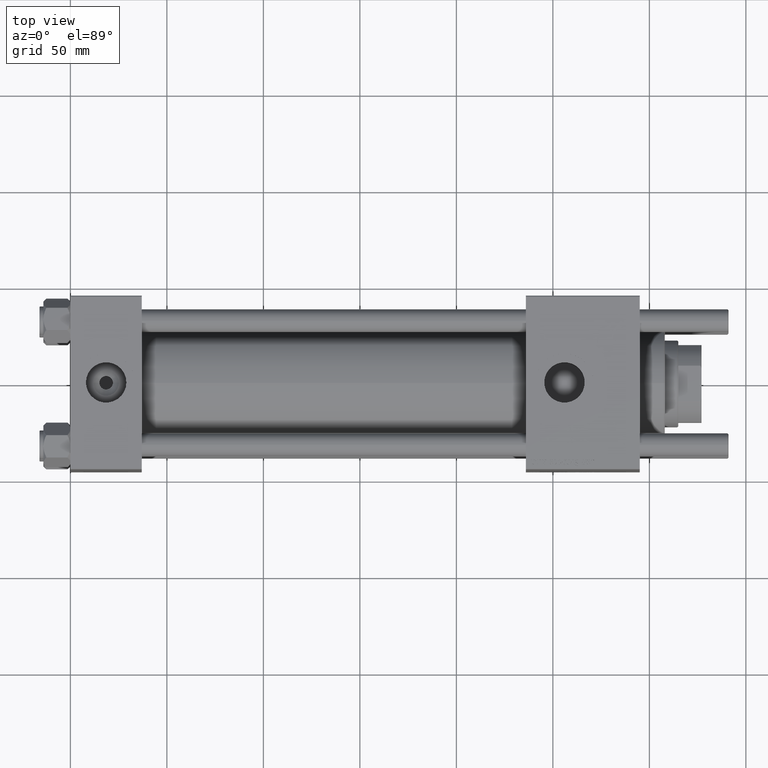
[diagram: clean part render]
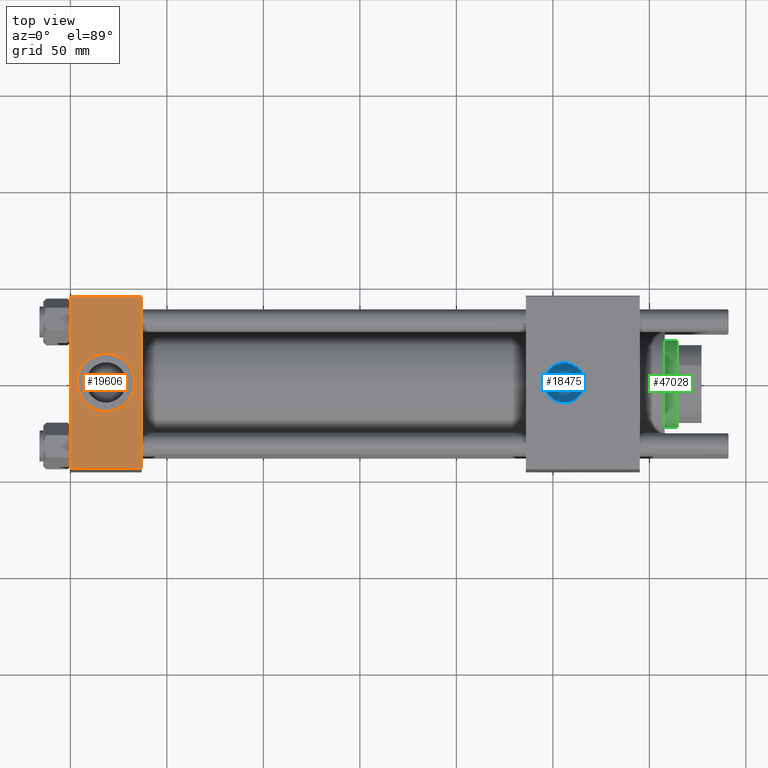
[diagram: same view with three faces highlighted in distinct colors, each labeled with its STEP entity id]
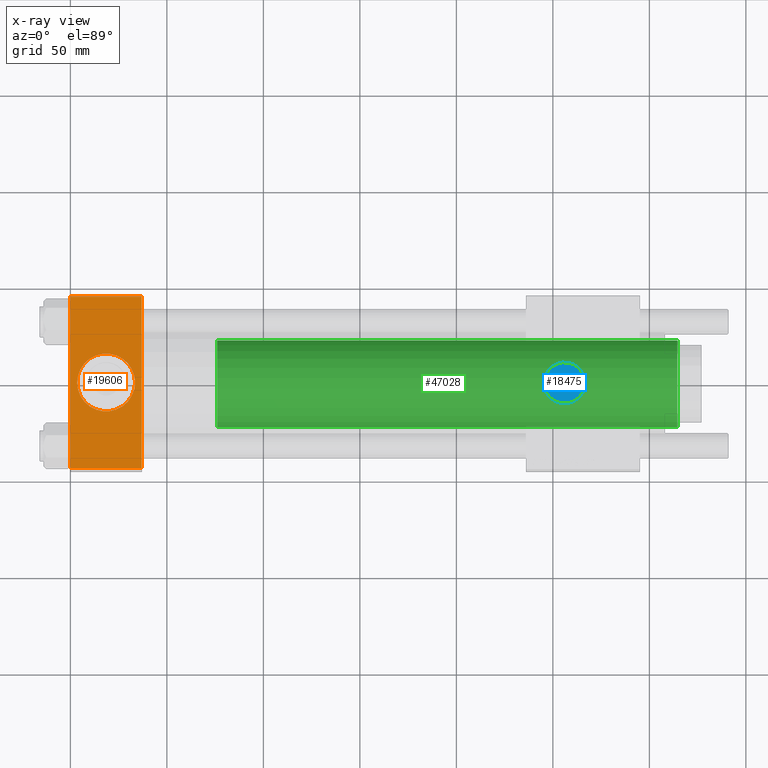
[diagram: x-ray of the same camera — body ghosted, the three highlighted faces saturated]
A machine part, top view with three faces highlighted in distinct colors.
The next image is the same camera in x-ray (body ghosted, the three faces saturated) — at least one of them is partly hidden behind the body in this view.
Their STEP definitions:

[orange] entity #19606 — the highlighted planar face has unit normal (0, 0, -1).
#337 = CARTESIAN_POINT ( 'NONE',  ( 37.00000000000000000, -44.49999999999998579, 45.00000000000000000 ) ) ;
#886 = DIRECTION ( 'NONE',  ( 0.000000000000000000, 1.000000000000000000, 1.541976423090495633E-16 ) ) ;
#1640 = VERTEX_POINT ( 'NONE', #5956 ) ;
#2261 = ORIENTED_EDGE ( 'NONE', *, *, #11280, .F. ) ;
#2772 = DIRECTION ( 'NONE',  ( 1.000000000000000000, 0.000000000000000000, 0.000000000000000000 ) ) ;
#3059 = VECTOR ( 'NONE', #36879, 1000.000000000000000 ) ;
#3073 = ORIENTED_EDGE ( 'NONE', *, *, #25999, .T. ) ;
#3302 = VERTEX_POINT ( 'NONE', #30989 ) ;
#4179 = VERTEX_POINT ( 'NONE', #8105 ) ;
#5182 = VERTEX_POINT ( 'NONE', #34672 ) ;
#5297 = CARTESIAN_POINT ( 'NONE',  ( 3.499999999999997780, -6.836647181163008250E-15, 45.00000000000000711 ) ) ;
#5350 = CARTESIAN_POINT ( 'NONE',  ( 18.50000000000000000, -8.673617379884038628E-15, 45.00000000000000711 ) ) ;
#5956 = CARTESIAN_POINT ( 'NONE',  ( 0.000000000000000000, 44.49999999999998579, 45.00000000000001421 ) ) ;
#7155 = AXIS2_PLACEMENT_3D ( 'NONE', #28269, #19692, #2772 ) ;
#7246 = EDGE_CURVE ( 'NONE', #4179, #44795, #8018, .T. ) ;
#7810 = LINE ( 'NONE', #48445, #48570 ) ;
#8018 = CIRCLE ( 'NONE', #15335, 15.00000000000000355 ) ;
#8105 = CARTESIAN_POINT ( 'NONE',  ( 33.50000000000000000, -8.673617379884038628E-15, 45.00000000000000711 ) ) ;
#8368 = VECTOR ( 'NONE', #37691, 1000.000000000000000 ) ;
#8796 = DIRECTION ( 'NONE',  ( 1.000000000000000000, 0.000000000000000000, 0.000000000000000000 ) ) ;
#9493 = DIRECTION ( 'NONE',  ( 0.000000000000000000, 1.541976423090495633E-16, -1.000000000000000000 ) ) ;
#9774 = CARTESIAN_POINT ( 'NONE',  ( 37.00000000000000000, 44.99999999999998579, 45.00000000000001421 ) ) ;
#10529 = LINE ( 'NONE', #32303, #3059 ) ;
#11280 = EDGE_CURVE ( 'NONE', #44795, #4179, #19062, .T. ) ;
#11880 = CARTESIAN_POINT ( 'NONE',  ( 37.00000000000000000, -44.49999999999995737, 45.00000000000000000 ) ) ;
#13490 = DIRECTION ( 'NONE',  ( 0.000000000000000000, -1.000000000000000000, -1.541976423090495387E-16 ) ) ;
#14760 = AXIS2_PLACEMENT_3D ( 'NONE', #9774, #9493, #886 ) ;
#14789 = ORIENTED_EDGE ( 'NONE', *, *, #24323, .T. ) ;
#15335 = AXIS2_PLACEMENT_3D ( 'NONE', #5350, #39451, #8796 ) ;
#15637 = CARTESIAN_POINT ( 'NONE',  ( 0.000000000000000000, 44.49999999999998579, 45.00000000000001421 ) ) ;
#19062 = CIRCLE ( 'NONE', #7155, 15.00000000000000355 ) ;
#19606 = ADVANCED_FACE ( 'NONE', ( #53035, #31263 ), #48748, .F. ) ;
#19692 = DIRECTION ( 'NONE',  ( 0.000000000000000000, 0.000000000000000000, 1.000000000000000000 ) ) ;
#24323 = EDGE_CURVE ( 'NONE', #1640, #3302, #7810, .T. ) ;
#24609 = EDGE_LOOP ( 'NONE', ( #25099, #2261 ) ) ;
#25099 = ORIENTED_EDGE ( 'NONE', *, *, #7246, .F. ) ;
#25999 = EDGE_CURVE ( 'NONE', #5182, #1640, #41698, .T. ) ;
#27819 = VERTEX_POINT ( 'NONE', #11880 ) ;
#28269 = CARTESIAN_POINT ( 'NONE',  ( 18.50000000000000000, -8.673617379884038628E-15, 45.00000000000000711 ) ) ;
#29821 = ORIENTED_EDGE ( 'NONE', *, *, #47629, .F. ) ;
#30519 = VECTOR ( 'NONE', #48759, 1000.000000000000000 ) ;
#30989 = CARTESIAN_POINT ( 'NONE',  ( 0.000000000000000000, -44.49999999999995737, 45.00000000000000000 ) ) ;
#31263 = FACE_OUTER_BOUND ( 'NONE', #54732, .T. ) ;
#32303 = CARTESIAN_POINT ( 'NONE',  ( 37.00000000000000000, 44.99999999999998579, 45.00000000000001421 ) ) ;
#34672 = CARTESIAN_POINT ( 'NONE',  ( 37.00000000000000000, 44.49999999999998579, 45.00000000000001421 ) ) ;
#35002 = LINE ( 'NONE', #337, #30519 ) ;
#36879 = DIRECTION ( 'NONE',  ( 0.000000000000000000, -1.000000000000000000, -1.541976423090495387E-16 ) ) ;
#37691 = DIRECTION ( 'NONE',  ( -1.000000000000000000, 0.000000000000000000, 0.000000000000000000 ) ) ;
#39451 = DIRECTION ( 'NONE',  ( 0.000000000000000000, 0.000000000000000000, 1.000000000000000000 ) ) ;
#41698 = LINE ( 'NONE', #15637, #8368 ) ;
#44795 = VERTEX_POINT ( 'NONE', #5297 ) ;
#47629 = EDGE_CURVE ( 'NONE', #5182, #27819, #10529, .T. ) ;
#48445 = CARTESIAN_POINT ( 'NONE',  ( 0.000000000000000000, 44.99999999999998579, 45.00000000000001421 ) ) ;
#48570 = VECTOR ( 'NONE', #13490, 1000.000000000000000 ) ;
#48748 = PLANE ( 'NONE',  #14760 ) ;
#48759 = DIRECTION ( 'NONE',  ( 1.000000000000000000, 0.000000000000000000, 0.000000000000000000 ) ) ;
#49040 = EDGE_CURVE ( 'NONE', #3302, #27819, #35002, .T. ) ;
#51230 = ORIENTED_EDGE ( 'NONE', *, *, #49040, .T. ) ;
#53035 = FACE_BOUND ( 'NONE', #24609, .T. ) ;
#54732 = EDGE_LOOP ( 'NONE', ( #14789, #51230, #29821, #3073 ) ) ;

[blue] entity #18475 — the highlighted planar face has unit normal (0, 0, 1).
#2122 = CARTESIAN_POINT ( 'NONE',  ( 245.5200000000000102, -6.938893903907227589E-15, 28.59999999999998721 ) ) ;
#2488 = AXIS2_PLACEMENT_3D ( 'NONE', #27480, #26636, #18319 ) ;
#3978 = CARTESIAN_POINT ( 'NONE',  ( 266.3000000000000114, -1.934011375354105944, 28.59999999999998721 ) ) ;
#4763 = CARTESIAN_POINT ( 'NONE',  ( 266.3000000000000114, 1.934011375354091955, 28.59999999999998721 ) ) ;
#6857 = EDGE_CURVE ( 'NONE', #22345, #30520, #31723, .T. ) ;
#13000 = DIRECTION ( 'NONE',  ( 0.000000000000000000, 0.000000000000000000, 1.000000000000000000 ) ) ;
#14264 = CARTESIAN_POINT ( 'NONE',  ( 266.3000000000000114, 0.000000000000000000, 28.59999999999998721 ) ) ;
#18319 = DIRECTION ( 'NONE',  ( 1.000000000000000000, 0.000000000000000000, 0.000000000000000000 ) ) ;
#18475 = ADVANCED_FACE ( 'NONE', ( #48513 ), #56553, .T. ) ;
#20059 = VERTEX_POINT ( 'NONE', #4763 ) ;
#22345 = VERTEX_POINT ( 'NONE', #2122 ) ;
#23055 = AXIS2_PLACEMENT_3D ( 'NONE', #50312, #23972, #50029 ) ;
#23972 = DIRECTION ( 'NONE',  ( 0.000000000000000000, 0.000000000000000000, 1.000000000000000000 ) ) ;
#26636 = DIRECTION ( 'NONE',  ( 0.000000000000000000, 0.000000000000000000, 1.000000000000000000 ) ) ;
#27441 = LINE ( 'NONE', #14264, #56031 ) ;
#27480 = CARTESIAN_POINT ( 'NONE',  ( 256.0000000000000000, -6.938893903907227589E-15, 28.59999999999998721 ) ) ;
#30475 = DIRECTION ( 'NONE',  ( 1.000000000000000000, 0.000000000000000000, -0.000000000000000000 ) ) ;
#30520 = VERTEX_POINT ( 'NONE', #3978 ) ;
#31723 = CIRCLE ( 'NONE', #2488, 10.47999999999998977 ) ;
#38408 = ORIENTED_EDGE ( 'NONE', *, *, #45359, .F. ) ;
#43096 = CARTESIAN_POINT ( 'NONE',  ( 256.0000000000000000, -6.938893903907227589E-15, 28.59999999999998721 ) ) ;
#44102 = ORIENTED_EDGE ( 'NONE', *, *, #44658, .T. ) ;
#44658 = EDGE_CURVE ( 'NONE', #20059, #22345, #47754, .T. ) ;
#44918 = DIRECTION ( 'NONE',  ( 0.000000000000000000, -1.000000000000000000, 0.000000000000000000 ) ) ;
#45359 = EDGE_CURVE ( 'NONE', #20059, #30520, #27441, .T. ) ;
#47754 = CIRCLE ( 'NONE', #23055, 10.47999999999998977 ) ;
#48513 = FACE_OUTER_BOUND ( 'NONE', #54414, .T. ) ;
#50029 = DIRECTION ( 'NONE',  ( 1.000000000000000000, 0.000000000000000000, 0.000000000000000000 ) ) ;
#50312 = CARTESIAN_POINT ( 'NONE',  ( 256.0000000000000000, -6.938893903907227589E-15, 28.59999999999998721 ) ) ;
#52029 = ORIENTED_EDGE ( 'NONE', *, *, #6857, .T. ) ;
#54052 = AXIS2_PLACEMENT_3D ( 'NONE', #43096, #13000, #30475 ) ;
#54414 = EDGE_LOOP ( 'NONE', ( #44102, #52029, #38408 ) ) ;
#56031 = VECTOR ( 'NONE', #44918, 1000.000000000000000 ) ;
#56553 = PLANE ( 'NONE',  #54052 ) ;

[green] entity #47028 — the highlighted cylindrical surface (partial cylindrical patch) has radius 22.5 mm, axis along (-1, 0, 0).
#602 = CYLINDRICAL_SURFACE ( 'NONE', #16717, 22.50000000000000355 ) ;
#1187 = EDGE_CURVE ( 'NONE', #37234, #36205, #7239, .T. ) ;
#3509 = CARTESIAN_POINT ( 'NONE',  ( 22.50000000000000355, 2.755455298081544383E-15, 277.9999999999999432 ) ) ;
#4297 = ORIENTED_EDGE ( 'NONE', *, *, #50355, .T. ) ;
#5050 = LINE ( 'NONE', #18522, #26652 ) ;
#6774 = AXIS2_PLACEMENT_3D ( 'NONE', #52362, #51806, #47245 ) ;
#7239 = LINE ( 'NONE', #3509, #43629 ) ;
#11813 = VERTEX_POINT ( 'NONE', #49562 ) ;
#15652 = EDGE_CURVE ( 'NONE', #37234, #51715, #47568, .T. ) ;
#16717 = AXIS2_PLACEMENT_3D ( 'NONE', #35539, #30135, #53029 ) ;
#18522 = CARTESIAN_POINT ( 'NONE',  ( -22.50000000000000355, 0.000000000000000000, 277.9999999999999432 ) ) ;
#20017 = EDGE_CURVE ( 'NONE', #51715, #11813, #5050, .T. ) ;
#22853 = AXIS2_PLACEMENT_3D ( 'NONE', #32666, #24380, #32385 ) ;
#24380 = DIRECTION ( 'NONE',  ( 0.000000000000000000, 0.000000000000000000, -1.000000000000000000 ) ) ;
#26652 = VECTOR ( 'NONE', #35985, 1000.000000000000000 ) ;
#29826 = ORIENTED_EDGE ( 'NONE', *, *, #1187, .F. ) ;
#30135 = DIRECTION ( 'NONE',  ( -0.000000000000000000, -0.000000000000000000, -1.000000000000000000 ) ) ;
#30187 = CARTESIAN_POINT ( 'NONE',  ( -22.50000000000000355, 0.000000000000000000, 277.5000000000000568 ) ) ;
#32348 = CIRCLE ( 'NONE', #6774, 22.50000000000000355 ) ;
#32385 = DIRECTION ( 'NONE',  ( 1.000000000000000000, 0.000000000000000000, 0.000000000000000000 ) ) ;
#32666 = CARTESIAN_POINT ( 'NONE',  ( 0.000000000000000000, 0.000000000000000000, 277.5000000000000568 ) ) ;
#33421 = CARTESIAN_POINT ( 'NONE',  ( 22.50000000000000355, 2.755455298081544383E-15, 277.5000000000000568 ) ) ;
#34972 = CARTESIAN_POINT ( 'NONE',  ( 22.50000000000000355, 2.755455298081544383E-15, 39.00000000000000000 ) ) ;
#35539 = CARTESIAN_POINT ( 'NONE',  ( 0.000000000000000000, 0.000000000000000000, 277.9999999999999432 ) ) ;
#35985 = DIRECTION ( 'NONE',  ( -0.000000000000000000, -0.000000000000000000, -1.000000000000000000 ) ) ;
#36205 = VERTEX_POINT ( 'NONE', #34972 ) ;
#37051 = EDGE_LOOP ( 'NONE', ( #29826, #47232, #55046, #4297 ) ) ;
#37234 = VERTEX_POINT ( 'NONE', #33421 ) ;
#39846 = FACE_OUTER_BOUND ( 'NONE', #37051, .T. ) ;
#43629 = VECTOR ( 'NONE', #46211, 1000.000000000000000 ) ;
#46211 = DIRECTION ( 'NONE',  ( -0.000000000000000000, -0.000000000000000000, -1.000000000000000000 ) ) ;
#47028 = ADVANCED_FACE ( 'NONE', ( #39846 ), #602, .T. ) ;
#47232 = ORIENTED_EDGE ( 'NONE', *, *, #15652, .T. ) ;
#47245 = DIRECTION ( 'NONE',  ( 1.000000000000000000, 0.000000000000000000, 0.000000000000000000 ) ) ;
#47568 = CIRCLE ( 'NONE', #22853, 22.50000000000000355 ) ;
#49562 = CARTESIAN_POINT ( 'NONE',  ( -22.50000000000000355, 0.000000000000000000, 39.00000000000000000 ) ) ;
#50355 = EDGE_CURVE ( 'NONE', #11813, #36205, #32348, .T. ) ;
#51715 = VERTEX_POINT ( 'NONE', #30187 ) ;
#51806 = DIRECTION ( 'NONE',  ( 0.000000000000000000, 0.000000000000000000, 1.000000000000000000 ) ) ;
#52362 = CARTESIAN_POINT ( 'NONE',  ( 0.000000000000000000, 0.000000000000000000, 39.00000000000000000 ) ) ;
#53029 = DIRECTION ( 'NONE',  ( -1.000000000000000000, 0.000000000000000000, 0.000000000000000000 ) ) ;
#55046 = ORIENTED_EDGE ( 'NONE', *, *, #20017, .T. ) ;